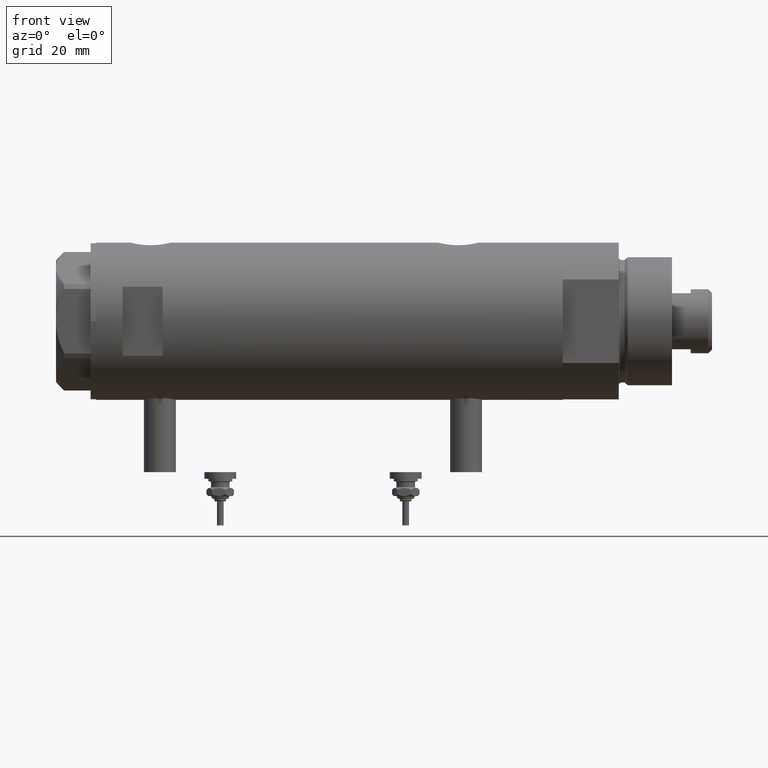
[diagram: clean part render]
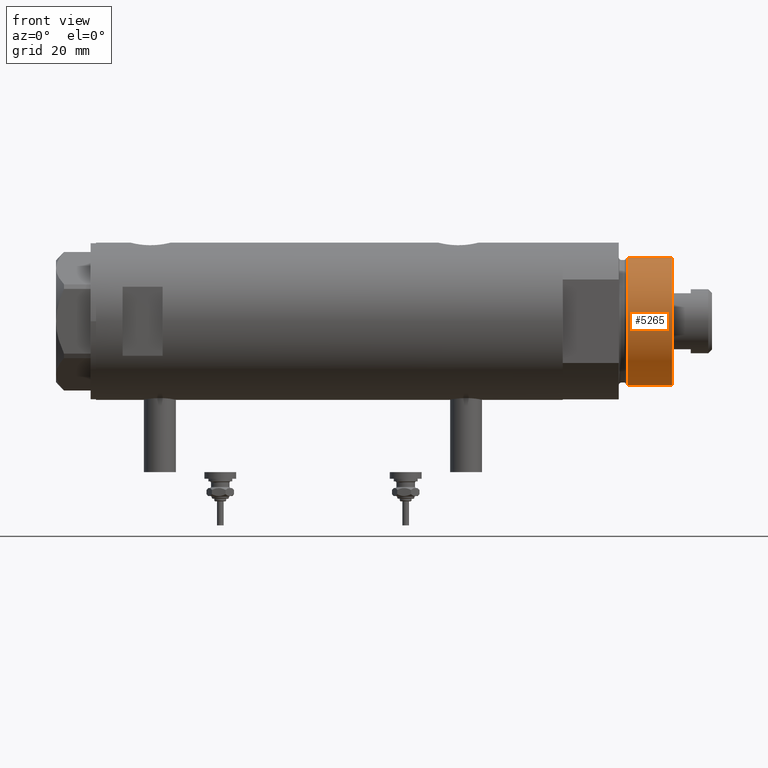
[diagram: same view with one face highlighted and labeled with its STEP entity id]
A machine part, front view. The second image highlights one B-rep face of the part: STEP entity #5265.
In plain terms, the highlighted cylindrical surface (partial cylindrical patch) has radius 24 mm, axis along (-1, -0, 0).
Its self-contained STEP definition (entity closure, byte-faithful):
#40 = ORIENTED_EDGE ( 'NONE', *, *, #5588, .F. ) ;
#45 = VERTEX_POINT ( 'NONE', #3790 ) ;
#83 = CARTESIAN_POINT ( 'NONE',  ( 24.00000000000000355, 2.939152317953648289E-15, 24.37384048104054557 ) ) ;
#342 = VERTEX_POINT ( 'NONE', #83 ) ;
#363 = DIRECTION ( 'NONE',  ( -1.000000000000000000, 0.000000000000000000, 0.000000000000000000 ) ) ;
#781 = CARTESIAN_POINT ( 'NONE',  ( 24.00000000000000355, 2.939152317953648289E-15, 41.00000000000000000 ) ) ;
#897 = CARTESIAN_POINT ( 'NONE',  ( 0.000000000000000000, 0.000000000000000000, 41.00000000000000000 ) ) ;
#997 = CARTESIAN_POINT ( 'NONE',  ( 0.000000000000000000, 0.000000000000000000, 24.37384048104054557 ) ) ;
#1060 = VERTEX_POINT ( 'NONE', #3643 ) ;
#1427 = ORIENTED_EDGE ( 'NONE', *, *, #4620, .T. ) ;
#1774 = EDGE_CURVE ( 'NONE', #45, #342, #2721, .T. ) ;
#2415 = DIRECTION ( 'NONE',  ( -0.000000000000000000, -0.000000000000000000, -1.000000000000000000 ) ) ;
#2445 = AXIS2_PLACEMENT_3D ( 'NONE', #997, #2825, #5126 ) ;
#2651 = CIRCLE ( 'NONE', #3612, 24.00000000000000355 ) ;
#2720 = DIRECTION ( 'NONE',  ( 1.000000000000000000, 0.000000000000000000, 0.000000000000000000 ) ) ;
#2721 = CIRCLE ( 'NONE', #2445, 24.00000000000000355 ) ;
#2825 = DIRECTION ( 'NONE',  ( -0.000000000000000000, -0.000000000000000000, 1.000000000000000000 ) ) ;
#2854 = VECTOR ( 'NONE', #2415, 1000.000000000000000 ) ;
#2873 = LINE ( 'NONE', #3191, #2854 ) ;
#2885 = DIRECTION ( 'NONE',  ( -0.000000000000000000, -0.000000000000000000, -1.000000000000000000 ) ) ;
#3024 = VERTEX_POINT ( 'NONE', #781 ) ;
#3191 = CARTESIAN_POINT ( 'NONE',  ( -24.00000000000000355, 0.000000000000000000, 41.00000000000000000 ) ) ;
#3333 = CARTESIAN_POINT ( 'NONE',  ( 24.00000000000000355, 2.939152317953648289E-15, 41.00000000000000000 ) ) ;
#3612 = AXIS2_PLACEMENT_3D ( 'NONE', #897, #4524, #2720 ) ;
#3643 = CARTESIAN_POINT ( 'NONE',  ( -24.00000000000000355, 0.000000000000000000, 41.00000000000000000 ) ) ;
#3790 = CARTESIAN_POINT ( 'NONE',  ( -24.00000000000000355, 0.000000000000000000, 24.37384048104054557 ) ) ;
#3928 = AXIS2_PLACEMENT_3D ( 'NONE', #3968, #4415, #363 ) ;
#3945 = FACE_OUTER_BOUND ( 'NONE', #5246, .T. ) ;
#3968 = CARTESIAN_POINT ( 'NONE',  ( 0.000000000000000000, 0.000000000000000000, 41.00000000000000000 ) ) ;
#4114 = VECTOR ( 'NONE', #2885, 1000.000000000000000 ) ;
#4234 = EDGE_CURVE ( 'NONE', #1060, #3024, #2651, .T. ) ;
#4415 = DIRECTION ( 'NONE',  ( -0.000000000000000000, -0.000000000000000000, -1.000000000000000000 ) ) ;
#4524 = DIRECTION ( 'NONE',  ( 0.000000000000000000, 0.000000000000000000, 1.000000000000000000 ) ) ;
#4620 = EDGE_CURVE ( 'NONE', #1060, #45, #2873, .T. ) ;
#5126 = DIRECTION ( 'NONE',  ( 1.000000000000000000, 0.000000000000000000, 0.000000000000000000 ) ) ;
#5211 = LINE ( 'NONE', #3333, #4114 ) ;
#5236 = ORIENTED_EDGE ( 'NONE', *, *, #1774, .T. ) ;
#5246 = EDGE_LOOP ( 'NONE', ( #40, #5453, #1427, #5236 ) ) ;
#5265 = ADVANCED_FACE ( 'NONE', ( #3945 ), #5816, .T. ) ;
#5453 = ORIENTED_EDGE ( 'NONE', *, *, #4234, .F. ) ;
#5588 = EDGE_CURVE ( 'NONE', #3024, #342, #5211, .T. ) ;
#5816 = CYLINDRICAL_SURFACE ( 'NONE', #3928, 24.00000000000000355 ) ;